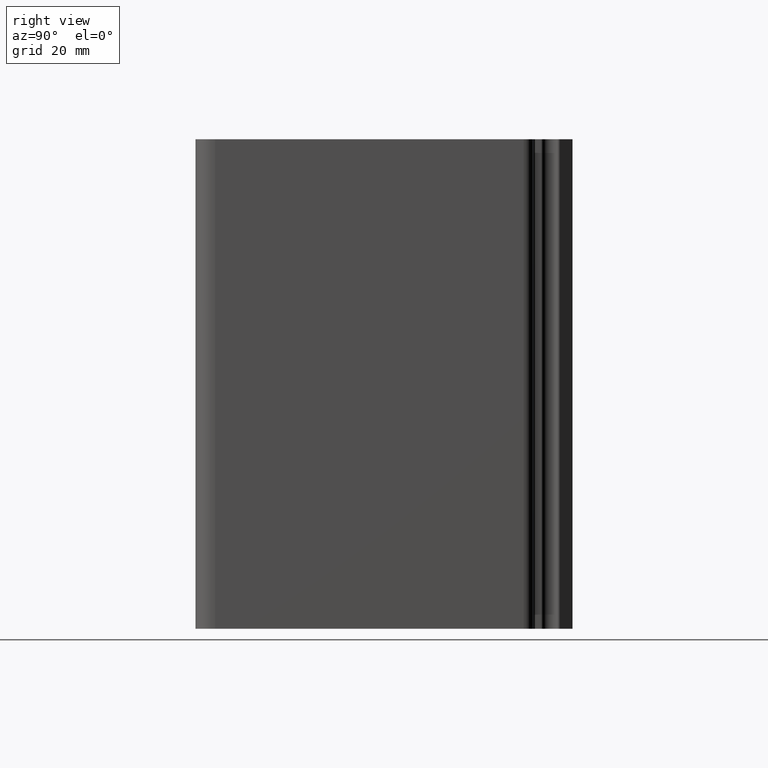
[diagram: clean part render]
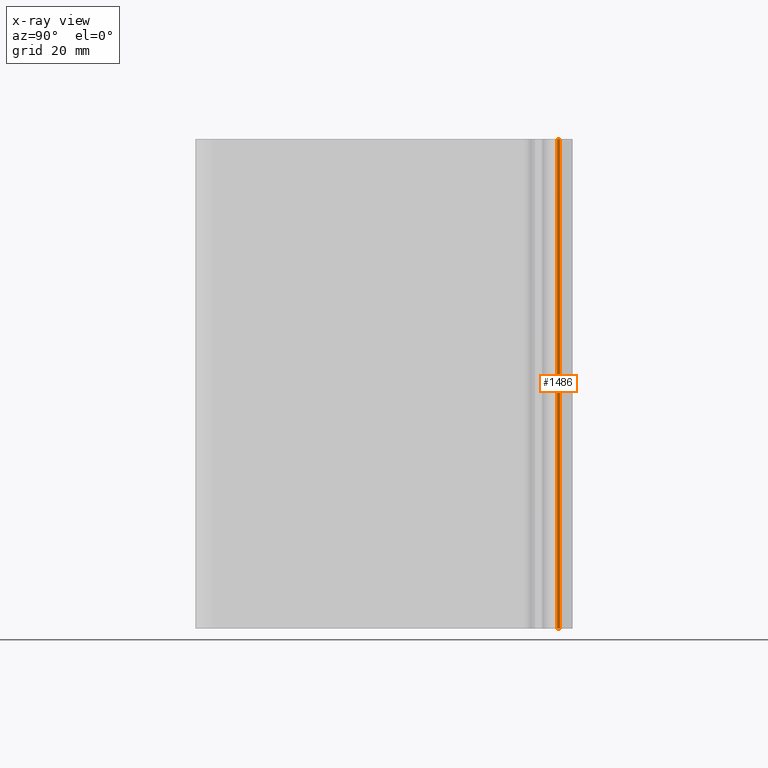
[diagram: x-ray — body ghosted, one internal face saturated and labeled with its STEP entity id]
A machine part, right view, then the same camera in x-ray: the body is ghosted and one INTERNAL B-rep face — a face not visible from any outside direction — is saturated and labeled: STEP entity #1486.
In plain terms, the highlighted cylindrical surface (edge-blend (fillet) strip) has radius 0.5 mm, axis along (0, 0, 1).
Its self-contained STEP definition (entity closure, byte-faithful):
#112=FACE_OUTER_BOUND('',#188,.T.);
#188=EDGE_LOOP('',(#1177,#1178,#1179,#1180));
#326=LINE('',#2448,#476);
#327=LINE('',#2454,#477);
#476=VECTOR('',#1994,100.);
#477=VECTOR('',#2001,100.);
#559=CIRCLE('',#1617,0.500000000000007);
#560=CIRCLE('',#1618,0.500000000000007);
#693=VERTEX_POINT('',#2444);
#694=VERTEX_POINT('',#2446);
#695=VERTEX_POINT('',#2450);
#696=VERTEX_POINT('',#2452);
#898=EDGE_CURVE('',#693,#694,#326,.T.);
#899=EDGE_CURVE('',#695,#693,#559,.T.);
#900=EDGE_CURVE('',#696,#694,#560,.T.);
#901=EDGE_CURVE('',#695,#696,#327,.T.);
#1177=ORIENTED_EDGE('',*,*,#899,.T.);
#1178=ORIENTED_EDGE('',*,*,#898,.T.);
#1179=ORIENTED_EDGE('',*,*,#900,.F.);
#1180=ORIENTED_EDGE('',*,*,#901,.F.);
#1419=CYLINDRICAL_SURFACE('',#1616,0.500000000000007);
#1486=ADVANCED_FACE('',(#112),#1419,.T.);
#1616=AXIS2_PLACEMENT_3D('',#2449,#1995,#1996);
#1617=AXIS2_PLACEMENT_3D('',#2451,#1997,#1998);
#1618=AXIS2_PLACEMENT_3D('',#2453,#1999,#2000);
#1994=DIRECTION('',(0.,0.,1.));
#1995=DIRECTION('center_axis',(0.,0.,1.));
#1996=DIRECTION('ref_axis',(0.740024085170698,-0.672580369448344,0.));
#1997=DIRECTION('center_axis',(0.,0.,1.));
#1998=DIRECTION('ref_axis',(0.740024085170698,-0.672580369448344,0.));
#1999=DIRECTION('center_axis',(0.,0.,1.));
#2000=DIRECTION('ref_axis',(0.740024085170698,-0.672580369448344,0.));
#2001=DIRECTION('',(0.,0.,1.));
#2444=CARTESIAN_POINT('',(36.5829524885959,74.4314509433216,0.));
#2446=CARTESIAN_POINT('',(36.5829524885959,74.4314509433216,100.));
#2448=CARTESIAN_POINT('',(36.5829524885959,74.4314509433216,0.));
#2449=CARTESIAN_POINT('Origin',(36.1499397869509,74.1814509428933,0.));
#2450=CARTESIAN_POINT('',(36.5199518295363,73.8451607581692,0.));
#2451=CARTESIAN_POINT('Origin',(36.1499397869509,74.1814509428933,0.));
#2452=CARTESIAN_POINT('',(36.5199518295363,73.8451607581692,100.));
#2453=CARTESIAN_POINT('Origin',(36.1499397869509,74.1814509428933,100.));
#2454=CARTESIAN_POINT('',(36.5199518295363,73.8451607581692,0.));